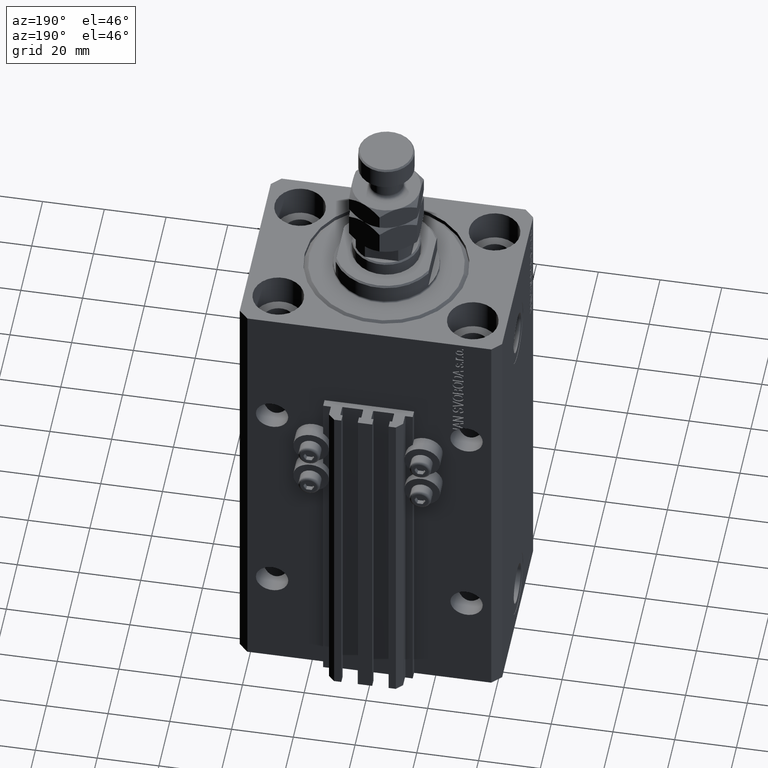
[diagram: clean part render]
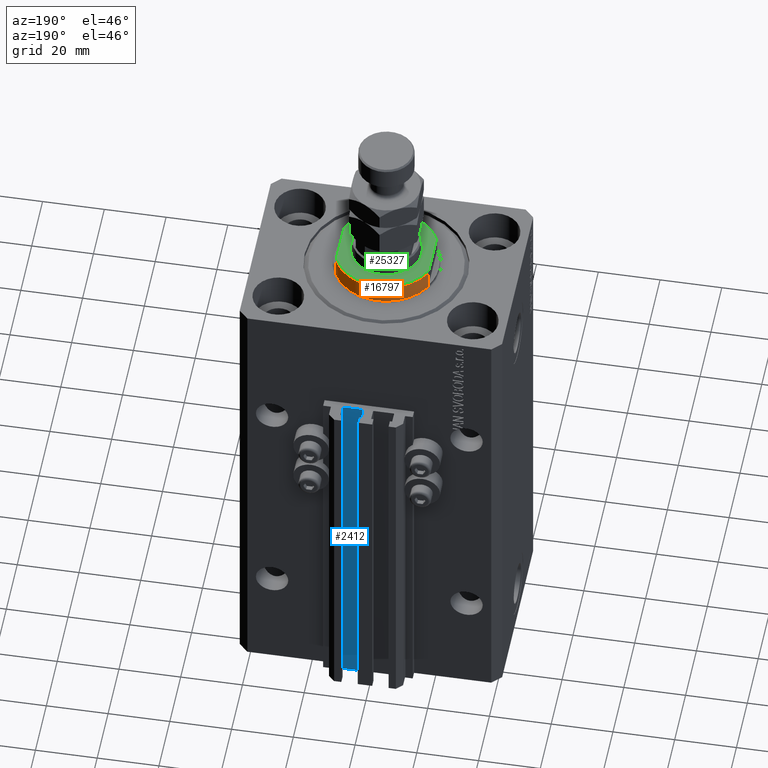
[diagram: same view with three faces highlighted in distinct colors, each labeled with its STEP entity id]
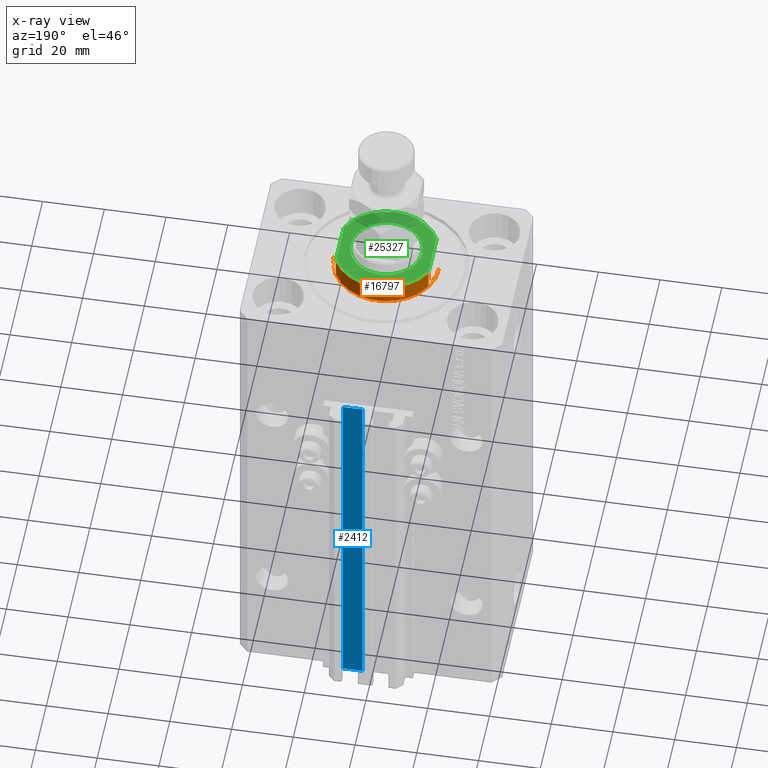
[diagram: x-ray of the same camera — body ghosted, the three highlighted faces saturated]
A machine part, auxiliary view with three faces highlighted in distinct colors.
The next image is the same camera in x-ray (body ghosted, the three faces saturated) — at least one of them is partly hidden behind the body in this view.
Their STEP definitions:

[orange] entity #16797 — the highlighted cylindrical surface (partial cylindrical patch) has radius 17 mm, axis along (0, 0, -1).
#382 = EDGE_CURVE ( 'NONE', #22447, #49142, #12566, .T. ) ;
#513 = LINE ( 'NONE', #30448, #4170 ) ;
#1444 = EDGE_CURVE ( 'NONE', #49142, #38378, #8924, .T. ) ;
#1652 = VERTEX_POINT ( 'NONE', #30444 ) ;
#1715 = EDGE_CURVE ( 'NONE', #26317, #40720, #22642, .T. ) ;
#1926 = DIRECTION ( 'NONE',  ( -1.000000000000000000, 0.000000000000000000, 0.000000000000000000 ) ) ;
#2189 = ORIENTED_EDGE ( 'NONE', *, *, #29339, .T. ) ;
#3055 = LINE ( 'NONE', #33985, #18693 ) ;
#3632 = VERTEX_POINT ( 'NONE', #13482 ) ;
#3645 = EDGE_CURVE ( 'NONE', #26317, #3632, #36137, .T. ) ;
#4170 = VECTOR ( 'NONE', #15869, 1000.000000000000000 ) ;
#4341 = EDGE_CURVE ( 'NONE', #1652, #38378, #3055, .T. ) ;
#4786 = AXIS2_PLACEMENT_3D ( 'NONE', #10553, #37233, #18104 ) ;
#4847 = CARTESIAN_POINT ( 'NONE',  ( 0.000000000000000000, 0.000000000000000000, -0.4999999999999995559 ) ) ;
#8924 = CIRCLE ( 'NONE', #28204, 17.00000000000000000 ) ;
#10553 = CARTESIAN_POINT ( 'NONE',  ( 0.000000000000000000, 0.000000000000000000, -1.000000000000000000 ) ) ;
#12188 = CARTESIAN_POINT ( 'NONE',  ( -15.00000000000000000, 8.000000000000001776, -6.500000000000013323 ) ) ;
#12566 = LINE ( 'NONE', #43754, #31406 ) ;
#12801 = DIRECTION ( 'NONE',  ( -0.000000000000000000, -0.000000000000000000, 1.000000000000000000 ) ) ;
#13482 = CARTESIAN_POINT ( 'NONE',  ( 14.99999999999999645, 8.000000000000003553, -1.000000000000000000 ) ) ;
#14275 = DIRECTION ( 'NONE',  ( -0.000000000000000000, -0.000000000000000000, 1.000000000000000000 ) ) ;
#15869 = DIRECTION ( 'NONE',  ( -0.000000000000000000, -0.000000000000000000, 1.000000000000000000 ) ) ;
#16471 = EDGE_LOOP ( 'NONE', ( #23839, #43303, #31621, #29026, #31692, #44701, #44496, #2189 ) ) ;
#16797 = ADVANCED_FACE ( 'NONE', ( #34138 ), #30117, .T. ) ;
#17017 = DIRECTION ( 'NONE',  ( -0.000000000000000000, -0.000000000000000000, 1.000000000000000000 ) ) ;
#17849 = CARTESIAN_POINT ( 'NONE',  ( 17.00000000000000000, 0.000000000000000000, -0.4999999999999995559 ) ) ;
#18021 = CARTESIAN_POINT ( 'NONE',  ( 0.000000000000000000, 0.000000000000000000, -6.500000000000013323 ) ) ;
#18104 = DIRECTION ( 'NONE',  ( -1.000000000000000000, 0.000000000000000000, 0.000000000000000000 ) ) ;
#18301 = AXIS2_PLACEMENT_3D ( 'NONE', #45471, #14275, #45961 ) ;
#18693 = VECTOR ( 'NONE', #37766, 1000.000000000000000 ) ;
#21051 = DIRECTION ( 'NONE',  ( 0.000000000000000000, 0.000000000000000000, 1.000000000000000000 ) ) ;
#22422 = EDGE_CURVE ( 'NONE', #22447, #36337, #26454, .T. ) ;
#22447 = VERTEX_POINT ( 'NONE', #33445 ) ;
#22642 = CIRCLE ( 'NONE', #26630, 17.00000000000000000 ) ;
#23462 = DIRECTION ( 'NONE',  ( -0.000000000000000000, -0.000000000000000000, -1.000000000000000000 ) ) ;
#23839 = ORIENTED_EDGE ( 'NONE', *, *, #22422, .F. ) ;
#25530 = DIRECTION ( 'NONE',  ( -1.000000000000000000, 0.000000000000000000, 0.000000000000000000 ) ) ;
#25778 = CIRCLE ( 'NONE', #44261, 17.00000000000000000 ) ;
#26317 = VERTEX_POINT ( 'NONE', #37288 ) ;
#26454 = CIRCLE ( 'NONE', #4786, 17.00000000000000000 ) ;
#26630 = AXIS2_PLACEMENT_3D ( 'NONE', #18021, #21051, #1926 ) ;
#28204 = AXIS2_PLACEMENT_3D ( 'NONE', #4847, #23462, #31022 ) ;
#29026 = ORIENTED_EDGE ( 'NONE', *, *, #4341, .F. ) ;
#29040 = CARTESIAN_POINT ( 'NONE',  ( 0.000000000000000000, 0.000000000000000000, -1.000000000000000000 ) ) ;
#29339 = EDGE_CURVE ( 'NONE', #40720, #36337, #513, .T. ) ;
#30117 = CYLINDRICAL_SURFACE ( 'NONE', #18301, 17.00000000000000000 ) ;
#30444 = CARTESIAN_POINT ( 'NONE',  ( 17.00000000000000000, 0.000000000000000000, -1.000000000000000000 ) ) ;
#30448 = CARTESIAN_POINT ( 'NONE',  ( -15.00000000000000000, 8.000000000000001776, -7.000000000000000000 ) ) ;
#31022 = DIRECTION ( 'NONE',  ( 1.000000000000000000, 0.000000000000000000, 0.000000000000000000 ) ) ;
#31406 = VECTOR ( 'NONE', #12801, 1000.000000000000000 ) ;
#31621 = ORIENTED_EDGE ( 'NONE', *, *, #1444, .T. ) ;
#31692 = ORIENTED_EDGE ( 'NONE', *, *, #43747, .F. ) ;
#33445 = CARTESIAN_POINT ( 'NONE',  ( -17.00000000000000000, 2.081899558550500280E-15, -1.000000000000000000 ) ) ;
#33985 = CARTESIAN_POINT ( 'NONE',  ( 17.00000000000000000, 0.000000000000000000, -7.000000000000000000 ) ) ;
#34138 = FACE_OUTER_BOUND ( 'NONE', #16471, .T. ) ;
#34335 = CARTESIAN_POINT ( 'NONE',  ( -14.99999999999999645, 8.000000000000003553, -1.000000000000000000 ) ) ;
#35766 = CARTESIAN_POINT ( 'NONE',  ( -17.00000000000000000, 2.081899558550500280E-15, -0.4999999999999995559 ) ) ;
#36137 = LINE ( 'NONE', #40664, #38773 ) ;
#36337 = VERTEX_POINT ( 'NONE', #34335 ) ;
#37105 = DIRECTION ( 'NONE',  ( 0.000000000000000000, 0.000000000000000000, -1.000000000000000000 ) ) ;
#37233 = DIRECTION ( 'NONE',  ( 0.000000000000000000, 0.000000000000000000, -1.000000000000000000 ) ) ;
#37288 = CARTESIAN_POINT ( 'NONE',  ( 15.00000000000000000, 8.000000000000001776, -6.500000000000013323 ) ) ;
#37766 = DIRECTION ( 'NONE',  ( -0.000000000000000000, -0.000000000000000000, 1.000000000000000000 ) ) ;
#38378 = VERTEX_POINT ( 'NONE', #17849 ) ;
#38773 = VECTOR ( 'NONE', #17017, 1000.000000000000000 ) ;
#40664 = CARTESIAN_POINT ( 'NONE',  ( 15.00000000000000000, 8.000000000000001776, -7.000000000000000000 ) ) ;
#40720 = VERTEX_POINT ( 'NONE', #12188 ) ;
#43303 = ORIENTED_EDGE ( 'NONE', *, *, #382, .T. ) ;
#43747 = EDGE_CURVE ( 'NONE', #3632, #1652, #25778, .T. ) ;
#43754 = CARTESIAN_POINT ( 'NONE',  ( -17.00000000000000000, 2.081899558550500280E-15, -7.000000000000000000 ) ) ;
#44261 = AXIS2_PLACEMENT_3D ( 'NONE', #29040, #37105, #25530 ) ;
#44496 = ORIENTED_EDGE ( 'NONE', *, *, #1715, .T. ) ;
#44701 = ORIENTED_EDGE ( 'NONE', *, *, #3645, .F. ) ;
#45471 = CARTESIAN_POINT ( 'NONE',  ( 0.000000000000000000, 0.000000000000000000, -7.000000000000000000 ) ) ;
#45961 = DIRECTION ( 'NONE',  ( 1.000000000000000000, 0.000000000000000000, 0.000000000000000000 ) ) ;
#49142 = VERTEX_POINT ( 'NONE', #35766 ) ;

[blue] entity #2412 — the highlighted planar face has unit normal (0, 1, 0).
#2412 = ADVANCED_FACE ( 'NONE', ( #21199 ), #16911, .T. ) ;
#2685 = VECTOR ( 'NONE', #4199, 1000.000000000000000 ) ;
#4199 = DIRECTION ( 'NONE',  ( -1.000000000000000000, 0.000000000000000000, 0.000000000000000000 ) ) ;
#5626 = ORIENTED_EDGE ( 'NONE', *, *, #38846, .T. ) ;
#5937 = DIRECTION ( 'NONE',  ( 0.000000000000000000, 0.000000000000000000, 1.000000000000000000 ) ) ;
#6532 = EDGE_CURVE ( 'NONE', #25436, #36467, #8210, .T. ) ;
#7147 = DIRECTION ( 'NONE',  ( -1.000000000000000000, 0.000000000000000000, 0.000000000000000000 ) ) ;
#7466 = CARTESIAN_POINT ( 'NONE',  ( 8.199999999999999289, 33.50000000000000000, -33.00000000000000000 ) ) ;
#7647 = LINE ( 'NONE', #37602, #45323 ) ;
#8210 = LINE ( 'NONE', #7466, #2685 ) ;
#10816 = EDGE_LOOP ( 'NONE', ( #28289, #29712, #5626, #44366 ) ) ;
#12979 = LINE ( 'NONE', #17504, #38387 ) ;
#14860 = DIRECTION ( 'NONE',  ( 0.000000000000000000, 0.000000000000000000, 1.000000000000000000 ) ) ;
#16334 = VERTEX_POINT ( 'NONE', #38927 ) ;
#16400 = EDGE_CURVE ( 'NONE', #45313, #36467, #12979, .T. ) ;
#16911 = PLANE ( 'NONE',  #35467 ) ;
#17504 = CARTESIAN_POINT ( 'NONE',  ( 1.800000000000000933, 33.50000000000000000, -153.0000000000000000 ) ) ;
#18682 = EDGE_CURVE ( 'NONE', #16334, #25436, #45307, .T. ) ;
#20942 = CARTESIAN_POINT ( 'NONE',  ( 8.199999999999999289, 33.50000000000000000, -153.0000000000000000 ) ) ;
#21199 = FACE_OUTER_BOUND ( 'NONE', #10816, .T. ) ;
#25436 = VERTEX_POINT ( 'NONE', #36772 ) ;
#28289 = ORIENTED_EDGE ( 'NONE', *, *, #6532, .F. ) ;
#29712 = ORIENTED_EDGE ( 'NONE', *, *, #18682, .F. ) ;
#31996 = VECTOR ( 'NONE', #14860, 1000.000000000000000 ) ;
#33969 = CARTESIAN_POINT ( 'NONE',  ( 8.199999999999999289, 33.50000000000000000, -153.0000000000000000 ) ) ;
#35467 = AXIS2_PLACEMENT_3D ( 'NONE', #20942, #47851, #44076 ) ;
#36467 = VERTEX_POINT ( 'NONE', #48380 ) ;
#36772 = CARTESIAN_POINT ( 'NONE',  ( 8.199999999999999289, 33.50000000000000000, -33.00000000000000000 ) ) ;
#37602 = CARTESIAN_POINT ( 'NONE',  ( 8.199999999999999289, 33.50000000000000000, -153.0000000000000000 ) ) ;
#38387 = VECTOR ( 'NONE', #5937, 1000.000000000000000 ) ;
#38846 = EDGE_CURVE ( 'NONE', #16334, #45313, #7647, .T. ) ;
#38927 = CARTESIAN_POINT ( 'NONE',  ( 8.199999999999999289, 33.50000000000000000, -153.0000000000000000 ) ) ;
#44076 = DIRECTION ( 'NONE',  ( 0.000000000000000000, 0.000000000000000000, 1.000000000000000000 ) ) ;
#44366 = ORIENTED_EDGE ( 'NONE', *, *, #16400, .T. ) ;
#45307 = LINE ( 'NONE', #33969, #31996 ) ;
#45313 = VERTEX_POINT ( 'NONE', #48552 ) ;
#45323 = VECTOR ( 'NONE', #7147, 1000.000000000000000 ) ;
#47851 = DIRECTION ( 'NONE',  ( 0.000000000000000000, 1.000000000000000000, -0.000000000000000000 ) ) ;
#48380 = CARTESIAN_POINT ( 'NONE',  ( 1.800000000000000933, 33.50000000000000000, -33.00000000000000000 ) ) ;
#48552 = CARTESIAN_POINT ( 'NONE',  ( 1.800000000000000933, 33.50000000000000000, -153.0000000000000000 ) ) ;

[green] entity #25327 — the highlighted planar face has unit normal (0, 0, 1).
#472 = CIRCLE ( 'NONE', #28585, 16.50000000000002132 ) ;
#3991 = DIRECTION ( 'NONE',  ( 0.000000000000000000, -1.000000000000000000, -0.000000000000000000 ) ) ;
#4737 = CARTESIAN_POINT ( 'NONE',  ( 15.00000000000000000, -42.42640687119285303, -7.000000000000000000 ) ) ;
#5107 = FACE_BOUND ( 'NONE', #14276, .T. ) ;
#10505 = ORIENTED_EDGE ( 'NONE', *, *, #23163, .T. ) ;
#10967 = CARTESIAN_POINT ( 'NONE',  ( -15.00000000000000000, -42.42640687119285303, -7.000000000000000000 ) ) ;
#11990 = VERTEX_POINT ( 'NONE', #42996 ) ;
#12109 = CARTESIAN_POINT ( 'NONE',  ( 0.000000000000000000, 0.000000000000000000, -7.000000000000000000 ) ) ;
#12532 = LINE ( 'NONE', #4737, #38785 ) ;
#12864 = VERTEX_POINT ( 'NONE', #42557 ) ;
#12875 = VERTEX_POINT ( 'NONE', #35256 ) ;
#13454 = DIRECTION ( 'NONE',  ( -1.000000000000000000, 0.000000000000000000, 0.000000000000000000 ) ) ;
#14276 = EDGE_LOOP ( 'NONE', ( #47313, #17637 ) ) ;
#15754 = EDGE_CURVE ( 'NONE', #44866, #34177, #472, .T. ) ;
#16831 = AXIS2_PLACEMENT_3D ( 'NONE', #28474, #42843, #46870 ) ;
#16966 = CARTESIAN_POINT ( 'NONE',  ( -11.50000000000001776, 0.000000000000000000, -7.000000000000000000 ) ) ;
#17637 = ORIENTED_EDGE ( 'NONE', *, *, #23044, .T. ) ;
#18423 = DIRECTION ( 'NONE',  ( -0.000000000000000000, -0.000000000000000000, 1.000000000000000000 ) ) ;
#19169 = AXIS2_PLACEMENT_3D ( 'NONE', #29746, #18423, #38048 ) ;
#19399 = VECTOR ( 'NONE', #49446, 1000.000000000000000 ) ;
#19587 = ORIENTED_EDGE ( 'NONE', *, *, #28559, .F. ) ;
#21445 = VERTEX_POINT ( 'NONE', #16966 ) ;
#21622 = CIRCLE ( 'NONE', #19169, 11.50000000000001776 ) ;
#21858 = ORIENTED_EDGE ( 'NONE', *, *, #32188, .T. ) ;
#22320 = CARTESIAN_POINT ( 'NONE',  ( 14.99999999999999645, -6.873863542433817031, -7.000000000000000000 ) ) ;
#22367 = AXIS2_PLACEMENT_3D ( 'NONE', #36359, #47923, #13454 ) ;
#23044 = EDGE_CURVE ( 'NONE', #12864, #21445, #46477, .T. ) ;
#23163 = EDGE_CURVE ( 'NONE', #12875, #11990, #47251, .T. ) ;
#24194 = EDGE_CURVE ( 'NONE', #21445, #12864, #21622, .T. ) ;
#25327 = ADVANCED_FACE ( 'NONE', ( #5107, #28228 ), #27488, .T. ) ;
#27488 = PLANE ( 'NONE',  #16831 ) ;
#28063 = DIRECTION ( 'NONE',  ( -1.000000000000000000, 0.000000000000000000, 0.000000000000000000 ) ) ;
#28228 = FACE_OUTER_BOUND ( 'NONE', #49481, .T. ) ;
#28474 = CARTESIAN_POINT ( 'NONE',  ( 0.000000000000000000, 0.000000000000000000, -7.000000000000000000 ) ) ;
#28559 = EDGE_CURVE ( 'NONE', #12875, #34177, #45441, .T. ) ;
#28585 = AXIS2_PLACEMENT_3D ( 'NONE', #28801, #44162, #28063 ) ;
#28801 = CARTESIAN_POINT ( 'NONE',  ( 0.000000000000000000, 0.000000000000000000, -7.000000000000000000 ) ) ;
#29746 = CARTESIAN_POINT ( 'NONE',  ( 0.000000000000000000, 0.000000000000000000, -7.000000000000000000 ) ) ;
#30995 = DIRECTION ( 'NONE',  ( -1.000000000000000000, 0.000000000000000000, 0.000000000000000000 ) ) ;
#31991 = AXIS2_PLACEMENT_3D ( 'NONE', #12109, #33568, #30995 ) ;
#32188 = EDGE_CURVE ( 'NONE', #11990, #44866, #12532, .T. ) ;
#32458 = ORIENTED_EDGE ( 'NONE', *, *, #15754, .T. ) ;
#33568 = DIRECTION ( 'NONE',  ( 0.000000000000000000, 0.000000000000000000, -1.000000000000000000 ) ) ;
#34177 = VERTEX_POINT ( 'NONE', #40209 ) ;
#35256 = CARTESIAN_POINT ( 'NONE',  ( -14.99999999999999645, 6.873863542433817031, -7.000000000000000000 ) ) ;
#36359 = CARTESIAN_POINT ( 'NONE',  ( 0.000000000000000000, 0.000000000000000000, -7.000000000000000000 ) ) ;
#38048 = DIRECTION ( 'NONE',  ( -1.000000000000000000, 0.000000000000000000, 0.000000000000000000 ) ) ;
#38785 = VECTOR ( 'NONE', #3991, 1000.000000000000000 ) ;
#40209 = CARTESIAN_POINT ( 'NONE',  ( -14.99999999999999645, -6.873863542433817031, -7.000000000000000000 ) ) ;
#42557 = CARTESIAN_POINT ( 'NONE',  ( 11.50000000000001776, 1.408343819019458543E-15, -7.000000000000000000 ) ) ;
#42843 = DIRECTION ( 'NONE',  ( 0.000000000000000000, 0.000000000000000000, -1.000000000000000000 ) ) ;
#42996 = CARTESIAN_POINT ( 'NONE',  ( 14.99999999999999645, 6.873863542433817031, -7.000000000000000000 ) ) ;
#44162 = DIRECTION ( 'NONE',  ( 0.000000000000000000, 0.000000000000000000, -1.000000000000000000 ) ) ;
#44866 = VERTEX_POINT ( 'NONE', #22320 ) ;
#45441 = LINE ( 'NONE', #10967, #19399 ) ;
#46477 = CIRCLE ( 'NONE', #22367, 11.50000000000001776 ) ;
#46870 = DIRECTION ( 'NONE',  ( -1.000000000000000000, 0.000000000000000000, -0.000000000000000000 ) ) ;
#47251 = CIRCLE ( 'NONE', #31991, 16.50000000000002132 ) ;
#47313 = ORIENTED_EDGE ( 'NONE', *, *, #24194, .T. ) ;
#47923 = DIRECTION ( 'NONE',  ( -0.000000000000000000, -0.000000000000000000, 1.000000000000000000 ) ) ;
#49446 = DIRECTION ( 'NONE',  ( -0.000000000000000000, -1.000000000000000000, -0.000000000000000000 ) ) ;
#49481 = EDGE_LOOP ( 'NONE', ( #10505, #21858, #32458, #19587 ) ) ;